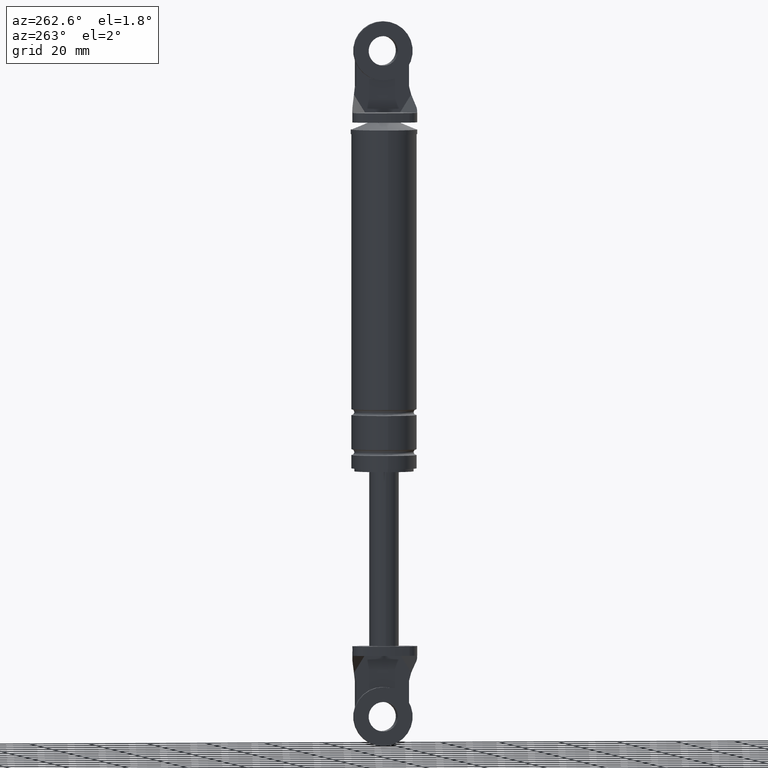
[diagram: clean part render]
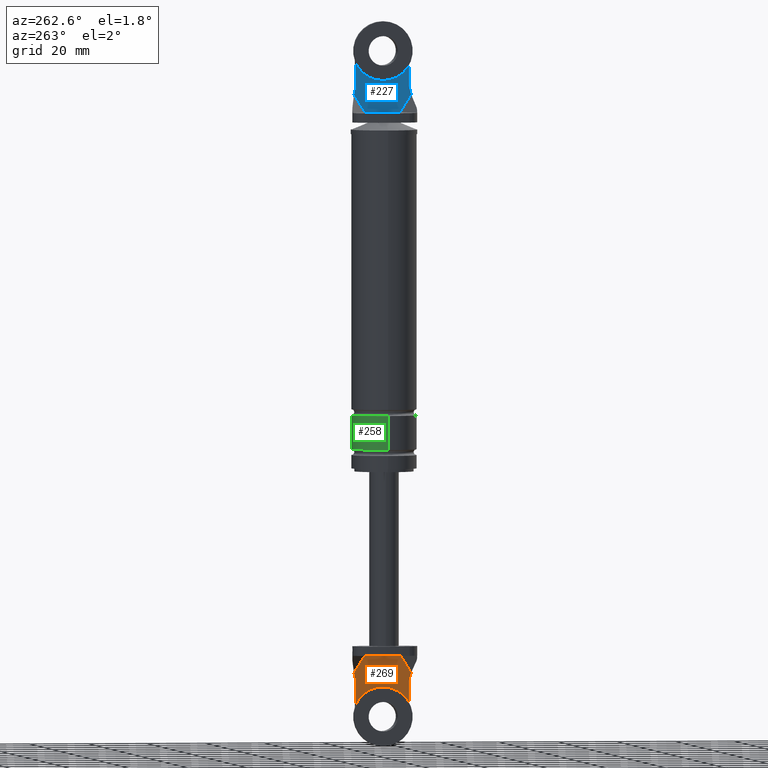
[diagram: same view with three faces highlighted in distinct colors, each labeled with its STEP entity id]
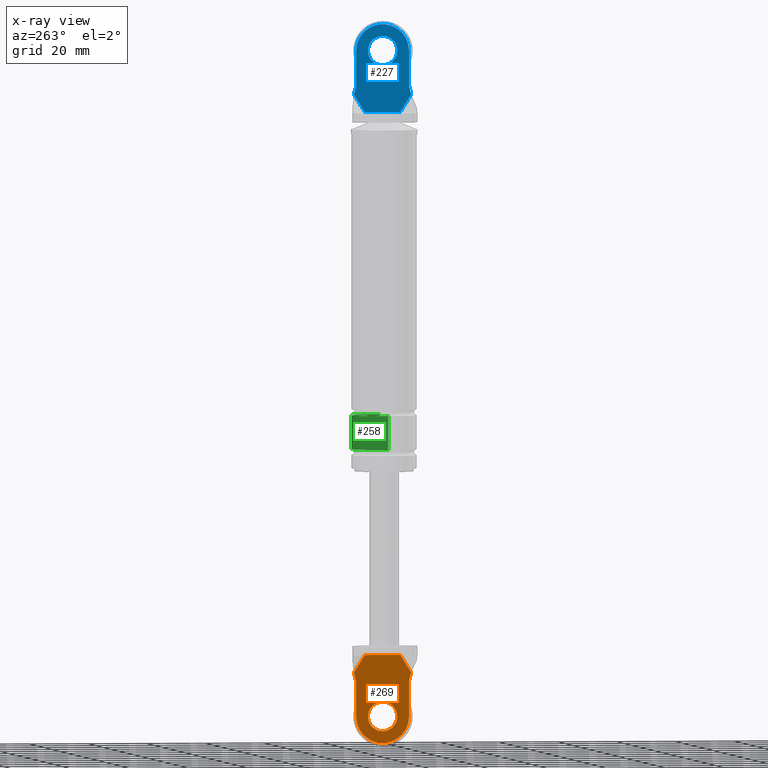
[diagram: x-ray of the same camera — body ghosted, the three highlighted faces saturated]
A machine part, auxiliary view with three faces highlighted in distinct colors.
The next image is the same camera in x-ray (body ghosted, the three faces saturated) — at least one of them is partly hidden behind the body in this view.
Their STEP definitions:

[orange] entity #269 — the highlighted planar face has unit normal (1, 0, 0).
#269=ADVANCED_FACE('',(#947,#948),#946,.F.);
#946=PLANE('',#1641);
#947=FACE_OUTER_BOUND('',#1642,.T.);
#948=FACE_BOUND('',#1643,.T.);
#1638=CARTESIAN_POINT('',(3.80000300000E+000,-1.16951792999E+001,-1.23980015732E+002));
#1639=DIRECTION('',(1.00000000000E+000,0.00000000000E+000,0.00000000000E+000));
#1640=DIRECTION('',(0.00000000000E+000,1.00000000000E+000,0.00000000000E+000));
#1641=AXIS2_PLACEMENT_3D('',#1638,#1639,#1640);
#1642=EDGE_LOOP('',(#2079,#2080,#2081,#2082,#2083,#2084,#2085,#2086,#2087,#2088));
#1643=EDGE_LOOP('',(#2089,#2090));
#2079=ORIENTED_EDGE('',*,*,#2337,.T.);
#2080=ORIENTED_EDGE('',*,*,#2345,.F.);
#2081=ORIENTED_EDGE('',*,*,#2346,.F.);
#2082=ORIENTED_EDGE('',*,*,#2320,.T.);
#2083=ORIENTED_EDGE('',*,*,#2323,.T.);
#2084=ORIENTED_EDGE('',*,*,#2316,.T.);
#2085=ORIENTED_EDGE('',*,*,#2347,.F.);
#2086=ORIENTED_EDGE('',*,*,#2348,.F.);
#2087=ORIENTED_EDGE('',*,*,#2343,.T.);
#2088=ORIENTED_EDGE('',*,*,#2340,.F.);
#2089=ORIENTED_EDGE('',*,*,#2349,.T.);
#2090=ORIENTED_EDGE('',*,*,#2350,.T.);
#2316=EDGE_CURVE('',#3286,#3279,#3287,.T.);
#2320=EDGE_CURVE('',#3314,#3307,#3315,.T.);
#2323=EDGE_CURVE('',#3307,#3286,#3334,.T.);
#2337=EDGE_CURVE('',#3430,#3423,#3431,.T.);
#2340=EDGE_CURVE('',#3430,#3450,#3451,.T.);
#2343=EDGE_CURVE('',#3470,#3450,#3471,.T.);
#2345=EDGE_CURVE('',#3483,#3423,#3484,.T.);
#2346=EDGE_CURVE('',#3314,#3483,#3490,.T.);
#2347=EDGE_CURVE('',#3496,#3279,#3497,.T.);
#2348=EDGE_CURVE('',#3470,#3496,#3503,.T.);
#2349=EDGE_CURVE('',#3509,#3510,#3511,.T.);
#2350=EDGE_CURVE('',#3510,#3509,#3517,.T.);
#3279=VERTEX_POINT('',#4261);
#3286=VERTEX_POINT('',#4265);
#3287=LINE('',#4266,#4267);
#3307=VERTEX_POINT('',#4277);
#3314=VERTEX_POINT('',#4281);
#3315=LINE('',#4282,#4283);
#3334=LINE('',#4293,#4294);
#3423=VERTEX_POINT('',#4345);
#3430=VERTEX_POINT('',#4349);
#3431=LINE('',#4350,#4351);
#3450=VERTEX_POINT('',#4361);
#3451=CIRCLE('',#4365,9.00000000000E+000);
#3470=VERTEX_POINT('',#4373);
#3471=LINE('',#4374,#4375);
#3483=VERTEX_POINT('',#4380);
#3484=LINE('',#4381,#4382);
#3490=LINE('',#4384,#4385);
#3496=VERTEX_POINT('',#4387);
#3497=LINE('',#4388,#4389);
#3503=LINE('',#4391,#4392);
#3509=VERTEX_POINT('',#4394);
#3510=VERTEX_POINT('',#4395);
#3511=CIRCLE('',#4399,5.00000000000E+000);
#3517=CIRCLE('',#4403,5.00000000000E+000);
#4261=CARTESIAN_POINT('',(3.80000300000E+000,9.74598274994E+000,-9.71935906119E+001));
#4265=CARTESIAN_POINT('',(3.80000300000E+000,6.00000000000E+000,-9.12000120000E+001));
#4266=CARTESIAN_POINT('',(3.80000300000E+000,6.00000000000E+000,-9.12000120000E+001));
#4267=VECTOR('',#4268,7.06791138451E+000);
#4268=DIRECTION('',(0.00000000000E+000,5.29998544994E-001,-8.47998550886E-001));
#4277=CARTESIAN_POINT('',(3.80000300000E+000,-6.00000000000E+000,-9.12000120000E+001));
#4281=CARTESIAN_POINT('',(3.80000300000E+000,-9.74598274994E+000,-9.71935906119E+001));
#4282=CARTESIAN_POINT('',(3.80000300000E+000,-9.74598274994E+000,-9.71935906119E+001));
#4283=VECTOR('',#4284,7.06791138451E+000);
#4284=DIRECTION('',(0.00000000000E+000,5.29998544994E-001,8.47998550886E-001));
#4293=CARTESIAN_POINT('',(3.80000300000E+000,-6.00000000000E+000,-9.12000120000E+001));
#4294=VECTOR('',#4295,1.20000000000E+001);
#4295=DIRECTION('',(0.00000000000E+000,1.00000000000E+000,0.00000000000E+000));
#4345=CARTESIAN_POINT('',(3.80000300000E+000,-9.00000000000E+000,-1.00000015000E+002));
#4349=CARTESIAN_POINT('',(3.80000300000E+000,-9.00000000000E+000,-1.12000014215E+002));
#4350=CARTESIAN_POINT('',(3.80000300000E+000,-9.00000000000E+000,-1.12000014215E+002));
#4351=VECTOR('',#4352,1.19999992146E+001);
#4352=DIRECTION('',(0.00000000000E+000,0.00000000000E+000,1.00000000000E+000));
#4361=CARTESIAN_POINT('',(3.80000300000E+000,9.00000000000E+000,-1.12000015000E+002));
#4362=CARTESIAN_POINT('',(3.80000300000E+000,0.00000000000E+000,-1.12000015000E+002));
#4363=DIRECTION('',(1.00000000000E+000,0.00000000000E+000,0.00000000000E+000));
#4364=DIRECTION('',(-0.00000000000E+000,-0.00000000000E+000,1.00000000000E+000));
#4365=AXIS2_PLACEMENT_3D('',#4362,#4363,#4364);
#4373=CARTESIAN_POINT('',(3.80000300000E+000,9.00000000000E+000,-1.00000015000E+002));
#4374=CARTESIAN_POINT('',(3.80000300000E+000,9.00000000000E+000,-1.00000015000E+002));
#4375=VECTOR('',#4376,1.20000000000E+001);
#4376=DIRECTION('',(0.00000000000E+000,0.00000000000E+000,-1.00000000000E+000));
#4380=CARTESIAN_POINT('',(3.80000300000E+000,-9.74598274994E+000,-9.72159694757E+001));
#4381=CARTESIAN_POINT('',(3.80000300000E+000,-9.74598274994E+000,-9.72159694757E+001));
#4382=VECTOR('',#4383,2.88225601652E+000);
#4383=DIRECTION('',(0.00000000000E+000,2.58819045103E-001,-9.65925826289E-001));
#4384=CARTESIAN_POINT('',(3.80000300000E+000,-9.74598274994E+000,-9.71935906119E+001));
#4385=VECTOR('',#4386,2.23788638131E-002);
#4386=DIRECTION('',(0.00000000000E+000,0.00000000000E+000,-1.00000000000E+000));
#4387=CARTESIAN_POINT('',(3.80000300000E+000,9.74598274994E+000,-9.72159694757E+001));
#4388=CARTESIAN_POINT('',(3.80000300000E+000,9.74598274994E+000,-9.72159694757E+001));
#4389=VECTOR('',#4390,2.23788638136E-002);
#4390=DIRECTION('',(0.00000000000E+000,0.00000000000E+000,1.00000000000E+000));
#4391=CARTESIAN_POINT('',(3.80000300000E+000,9.00000000000E+000,-1.00000015000E+002));
#4392=VECTOR('',#4393,2.88225601652E+000);
#4393=DIRECTION('',(0.00000000000E+000,2.58819045103E-001,9.65925826289E-001));
#4394=CARTESIAN_POINT('',(3.80000300000E+000,0.00000000000E+000,-1.17000015000E+002));
#4395=CARTESIAN_POINT('',(3.80000300000E+000,2.96059473233E-016,-1.07000015000E+002));
#4396=CARTESIAN_POINT('',(3.80000300000E+000,0.00000000000E+000,-1.12000015000E+002));
#4397=DIRECTION('',(1.00000000000E+000,0.00000000000E+000,0.00000000000E+000));
#4398=DIRECTION('',(0.00000000000E+000,-1.22460635382E-016,-1.00000000000E+000));
#4399=AXIS2_PLACEMENT_3D('',#4396,#4397,#4398);
#4400=CARTESIAN_POINT('',(3.80000300000E+000,0.00000000000E+000,-1.12000015000E+002));
#4401=DIRECTION('',(1.00000000000E+000,0.00000000000E+000,0.00000000000E+000));
#4402=DIRECTION('',(0.00000000000E+000,-1.22460635382E-016,-1.00000000000E+000));
#4403=AXIS2_PLACEMENT_3D('',#4400,#4401,#4402);

[blue] entity #227 — the highlighted planar face has unit normal (1, 0, 0).
#227=ADVANCED_FACE('',(#523,#524),#522,.F.);
#522=PLANE('',#1331);
#523=FACE_OUTER_BOUND('',#1332,.T.);
#524=FACE_BOUND('',#1333,.T.);
#1328=CARTESIAN_POINT('',(3.80000300000E+000,-1.16951792999E+001,8.92199849607E+001));
#1329=DIRECTION('',(1.00000000000E+000,0.00000000000E+000,0.00000000000E+000));
#1330=DIRECTION('',(0.00000000000E+000,1.00000000000E+000,-1.22460635382E-016));
#1331=AXIS2_PLACEMENT_3D('',#1328,#1329,#1330);
#1332=EDGE_LOOP('',(#1885,#1886,#1887,#1888,#1889,#1890,#1891,#1892,#1893,#1894));
#1333=EDGE_LOOP('',(#1895,#1896));
#1885=ORIENTED_EDGE('',*,*,#2247,.F.);
#1886=ORIENTED_EDGE('',*,*,#2248,.T.);
#1887=ORIENTED_EDGE('',*,*,#2249,.T.);
#1888=ORIENTED_EDGE('',*,*,#2224,.F.);
#1889=ORIENTED_EDGE('',*,*,#2231,.T.);
#1890=ORIENTED_EDGE('',*,*,#2228,.F.);
#1891=ORIENTED_EDGE('',*,*,#2250,.T.);
#1892=ORIENTED_EDGE('',*,*,#2251,.T.);
#1893=ORIENTED_EDGE('',*,*,#2242,.F.);
#1894=ORIENTED_EDGE('',*,*,#2245,.T.);
#1895=ORIENTED_EDGE('',*,*,#2252,.F.);
#1896=ORIENTED_EDGE('',*,*,#2253,.F.);
#2224=EDGE_CURVE('',#2672,#2679,#2680,.T.);
#2228=EDGE_CURVE('',#2700,#2707,#2708,.T.);
#2231=EDGE_CURVE('',#2672,#2707,#2727,.T.);
#2242=EDGE_CURVE('',#2793,#2800,#2801,.T.);
#2245=EDGE_CURVE('',#2793,#2813,#2820,.T.);
#2247=EDGE_CURVE('',#2826,#2813,#2833,.T.);
#2248=EDGE_CURVE('',#2826,#2839,#2840,.T.);
#2249=EDGE_CURVE('',#2839,#2679,#2846,.T.);
#2250=EDGE_CURVE('',#2700,#2852,#2853,.T.);
#2251=EDGE_CURVE('',#2852,#2800,#2859,.T.);
#2252=EDGE_CURVE('',#2865,#2866,#2867,.T.);
#2253=EDGE_CURVE('',#2866,#2865,#2873,.T.);
#2672=VERTEX_POINT('',#3900);
#2679=VERTEX_POINT('',#3904);
#2680=LINE('',#3905,#3906);
#2700=VERTEX_POINT('',#3916);
#2707=VERTEX_POINT('',#3920);
#2708=LINE('',#3921,#3922);
#2727=LINE('',#3932,#3933);
#2793=VERTEX_POINT('',#3970);
#2800=VERTEX_POINT('',#3974);
#2801=LINE('',#3975,#3976);
#2813=VERTEX_POINT('',#3981);
#2820=CIRCLE('',#3988,9.00000000000E+000);
#2826=VERTEX_POINT('',#3989);
#2833=LINE('',#3993,#3994);
#2839=VERTEX_POINT('',#3996);
#2840=LINE('',#3997,#3998);
#2846=LINE('',#4000,#4001);
#2852=VERTEX_POINT('',#4003);
#2853=LINE('',#4004,#4005);
#2859=LINE('',#4007,#4008);
#2865=VERTEX_POINT('',#4010);
#2866=VERTEX_POINT('',#4011);
#2867=CIRCLE('',#4015,5.00000000000E+000);
#2873=CIRCLE('',#4019,5.00000000000E+000);
#3900=CARTESIAN_POINT('',(3.80000300000E+000,6.00000000000E+000,9.21999850000E+001));
#3904=CARTESIAN_POINT('',(3.80000300000E+000,9.74598274994E+000,9.81935636119E+001));
#3905=CARTESIAN_POINT('',(3.80000300000E+000,6.00000000000E+000,9.21999850000E+001));
#3906=VECTOR('',#3907,7.06791138451E+000);
#3907=DIRECTION('',(0.00000000000E+000,5.29998544994E-001,8.47998550886E-001));
#3916=CARTESIAN_POINT('',(3.80000300000E+000,-9.74598274994E+000,9.81935636119E+001));
#3920=CARTESIAN_POINT('',(3.80000300000E+000,-6.00000000000E+000,9.21999850000E+001));
#3921=CARTESIAN_POINT('',(3.80000300000E+000,-9.74598274994E+000,9.81935636119E+001));
#3922=VECTOR('',#3923,7.06791138451E+000);
#3923=DIRECTION('',(0.00000000000E+000,5.29998544994E-001,-8.47998550886E-001));
#3932=CARTESIAN_POINT('',(3.80000300000E+000,6.00000000000E+000,9.21999850000E+001));
#3933=VECTOR('',#3934,1.20000000000E+001);
#3934=DIRECTION('',(0.00000000000E+000,-1.00000000000E+000,0.00000000000E+000));
#3970=CARTESIAN_POINT('',(3.80000300000E+000,-9.00000000000E+000,1.12999984215E+002));
#3974=CARTESIAN_POINT('',(3.80000300000E+000,-9.00000000000E+000,1.00999985000E+002));
#3975=CARTESIAN_POINT('',(3.80000300000E+000,-9.00000000000E+000,1.12999984215E+002));
#3976=VECTOR('',#3977,1.19999992146E+001);
#3977=DIRECTION('',(0.00000000000E+000,-1.48029746305E-016,-1.00000000000E+000));
#3981=CARTESIAN_POINT('',(3.80000300000E+000,9.00000000000E+000,1.12999985000E+002));
#3985=CARTESIAN_POINT('',(3.80000300000E+000,1.50626581520E-014,1.12999985000E+002));
#3986=DIRECTION('',(-1.00000000000E+000,0.00000000000E+000,0.00000000000E+000));
#3987=DIRECTION('',(-0.00000000000E+000,-1.22460635382E-016,-1.00000000000E+000));
#3988=AXIS2_PLACEMENT_3D('',#3985,#3986,#3987);
#3989=CARTESIAN_POINT('',(3.80000300000E+000,9.00000000000E+000,1.00999985000E+002));
#3993=CARTESIAN_POINT('',(3.80000300000E+000,9.00000000000E+000,1.00999985000E+002));
#3994=VECTOR('',#3995,1.20000000000E+001);
#3995=DIRECTION('',(0.00000000000E+000,1.48029736617E-016,1.00000000000E+000));
#3996=CARTESIAN_POINT('',(3.80000300000E+000,9.74598274994E+000,9.82159394757E+001));
#3997=CARTESIAN_POINT('',(3.80000300000E+000,9.00000000000E+000,1.00999985000E+002));
#3998=VECTOR('',#3999,2.88225601652E+000);
#3999=DIRECTION('',(0.00000000000E+000,2.58819045103E-001,-9.65925826289E-001));
#4000=CARTESIAN_POINT('',(3.80000300000E+000,9.74598274994E+000,9.82159394757E+001));
#4001=VECTOR('',#4002,2.23758638137E-002);
#4002=DIRECTION('',(0.00000000000E+000,0.00000000000E+000,-1.00000000000E+000));
#4003=CARTESIAN_POINT('',(3.80000300000E+000,-9.74598274994E+000,9.82159394757E+001));
#4004=CARTESIAN_POINT('',(3.80000300000E+000,-9.74598274994E+000,9.81935636119E+001));
#4005=VECTOR('',#4006,2.23758638136E-002);
#4006=DIRECTION('',(0.00000000000E+000,0.00000000000E+000,1.00000000000E+000));
#4007=CARTESIAN_POINT('',(3.80000300000E+000,-9.74598274994E+000,9.82159394757E+001));
#4008=VECTOR('',#4009,2.88225601652E+000);
#4009=DIRECTION('',(0.00000000000E+000,2.58819045103E-001,9.65925826289E-001));
#4010=CARTESIAN_POINT('',(3.80000300000E+000,1.48029736617E-014,1.07999985000E+002));
#4011=CARTESIAN_POINT('',(3.80000300000E+000,1.56749613289E-014,1.17999985000E+002));
#4012=CARTESIAN_POINT('',(3.80000300000E+000,1.50626581520E-014,1.12999985000E+002));
#4013=DIRECTION('',(-1.00000000000E+000,0.00000000000E+000,0.00000000000E+000));
#4014=DIRECTION('',(0.00000000000E+000,-1.47911419729E-031,1.00000000000E+000));
#4015=AXIS2_PLACEMENT_3D('',#4012,#4013,#4014);
#4016=CARTESIAN_POINT('',(3.80000300000E+000,1.50626581520E-014,1.12999985000E+002));
#4017=DIRECTION('',(-1.00000000000E+000,0.00000000000E+000,0.00000000000E+000));
#4018=DIRECTION('',(0.00000000000E+000,-1.47911419729E-031,1.00000000000E+000));
#4019=AXIS2_PLACEMENT_3D('',#4016,#4017,#4018);

[green] entity #258 — the highlighted cylindrical surface (edge-blend (fillet) strip) has radius 11 mm, axis along (0, 0, 1).
#258=ADVANCED_FACE('',(#837),#836,.T.);
#836=CYLINDRICAL_SURFACE('',#1586,1.10000000000E+001);
#837=FACE_OUTER_BOUND('',#1587,.T.);
#1583=CARTESIAN_POINT('',(0.00000000000E+000,3.58204186421E-014,0.00000000000E+000));
#1584=DIRECTION('',(-0.00000000000E+000,-0.00000000000E+000,1.00000000000E+000));
#1585=DIRECTION('',(1.00000000000E+000,0.00000000000E+000,0.00000000000E+000));
#1586=AXIS2_PLACEMENT_3D('',#1583,#1584,#1585);
#1587=EDGE_LOOP('',(#2030,#2031,#2032,#2033));
#2030=ORIENTED_EDGE('',*,*,#2301,.T.);
#2031=ORIENTED_EDGE('',*,*,#2307,.F.);
#2032=ORIENTED_EDGE('',*,*,#2298,.F.);
#2033=ORIENTED_EDGE('',*,*,#2308,.T.);
#2298=EDGE_CURVE('',#3147,#3146,#3166,.T.);
#2301=EDGE_CURVE('',#3187,#3180,#3188,.T.);
#2307=EDGE_CURVE('',#3146,#3180,#3224,.T.);
#2308=EDGE_CURVE('',#3147,#3187,#3230,.T.);
#3146=VERTEX_POINT('',#4177);
#3147=VERTEX_POINT('',#4178);
#3166=CIRCLE('',#4196,1.10000000000E+001);
#3180=VERTEX_POINT('',#4203);
#3187=VERTEX_POINT('',#4209);
#3188=CIRCLE('',#4213,1.10000000000E+001);
#3224=(BOUNDED_CURVE() B_SPLINE_CURVE(1,(#4231,#4232),.UNSPECIFIED.,.F.,.F.) B_SPLINE_CURVE_WITH_KNOTS((2,2),(8.33333343261E-002,9.16666667006E-001),.UNSPECIFIED.) CURVE() GEOMETRIC_REPRESENTATION_ITEM() RATIONAL_B_SPLINE_CURVE((1.00000000000E+000,1.00000000000E+000)) REPRESENTATION_ITEM('') );
#3230=(BOUNDED_CURVE() B_SPLINE_CURVE(1,(#4233,#4234),.UNSPECIFIED.,.F.,.F.) B_SPLINE_CURVE_WITH_KNOTS((2,2),(8.33333333333E-002,9.16666666667E-001),.UNSPECIFIED.) CURVE() GEOMETRIC_REPRESENTATION_ITEM() RATIONAL_B_SPLINE_CURVE((7.50000000000E-001,7.50000000000E-001)) REPRESENTATION_ITEM('') );
#4177=CARTESIAN_POINT('',(1.10000000000E+001,3.61192557345E-014,-2.15000150000E+001));
#4178=CARTESIAN_POINT('',(-1.10000000000E+001,3.58204186421E-014,-2.15000150000E+001));
#4193=CARTESIAN_POINT('',(0.00000000000E+000,3.58204186421E-014,-2.15000150000E+001));
#4194=DIRECTION('',(-0.00000000000E+000,0.00000000000E+000,-1.00000000000E+000));
#4195=DIRECTION('',(-1.00000000000E+000,-1.22460635382E-016,0.00000000000E+000));
#4196=AXIS2_PLACEMENT_3D('',#4193,#4194,#4195);
#4203=CARTESIAN_POINT('',(1.10000000000E+001,3.61192557345E-014,-1.00000150000E+001));
#4209=CARTESIAN_POINT('',(-1.10000000000E+001,3.58204186421E-014,-1.00000150000E+001));
#4210=CARTESIAN_POINT('',(0.00000000000E+000,3.58204186421E-014,-1.00000150000E+001));
#4211=DIRECTION('',(-0.00000000000E+000,0.00000000000E+000,-1.00000000000E+000));
#4212=DIRECTION('',(-1.00000000000E+000,-1.22460635382E-016,0.00000000000E+000));
#4213=AXIS2_PLACEMENT_3D('',#4210,#4211,#4212);
#4231=CARTESIAN_POINT('',(1.10000000000E+001,3.58204186421E-014,-2.15000149863E+001));
#4232=CARTESIAN_POINT('',(1.10000000000E+001,3.58204186421E-014,-1.00000149953E+001));
#4233=CARTESIAN_POINT('',(-1.10000000000E+001,3.55271367880E-014,-2.15000150000E+001));
#4234=CARTESIAN_POINT('',(-1.10000000000E+001,3.55271367880E-014,-1.00000150000E+001));